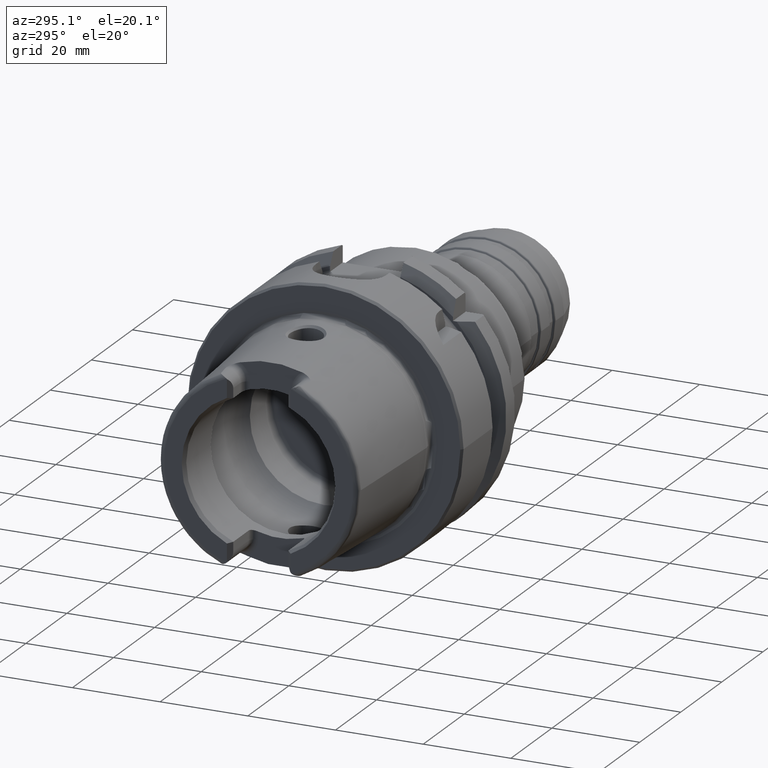
[diagram: clean part render]
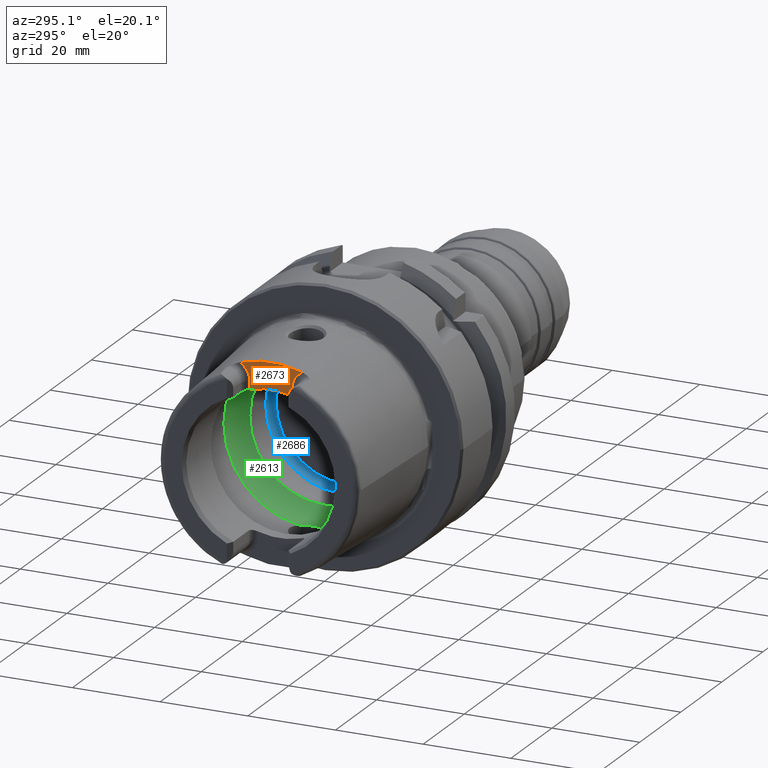
[diagram: same view with three faces highlighted in distinct colors, each labeled with its STEP entity id]
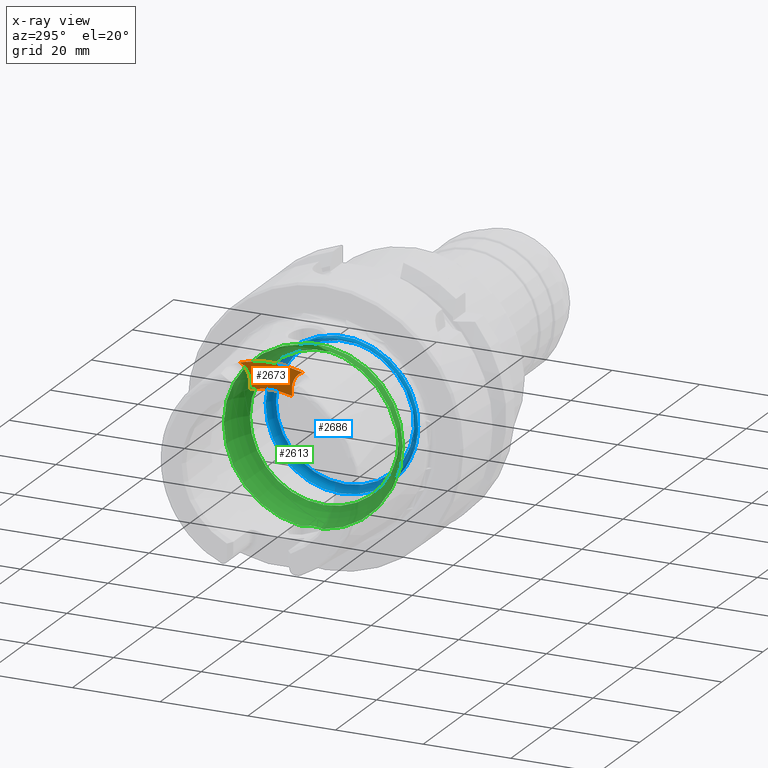
[diagram: x-ray of the same camera — body ghosted, the three highlighted faces saturated]
A machine part, auxiliary view with three faces highlighted in distinct colors.
The next image is the same camera in x-ray (body ghosted, the three faces saturated) — at least one of them is partly hidden behind the body in this view.
Their STEP definitions:

[orange] entity #2673 — the highlighted planar face has unit normal (-1, 0, 0).
#178=PLANE('',#3025);
#319=FACE_OUTER_BOUND('',#464,.T.);
#464=EDGE_LOOP('',(#2382,#2383,#2384,#2385,#2386,#2387));
#591=LINE('',#5457,#708);
#592=LINE('',#5486,#709);
#708=VECTOR('',#3762,10.);
#709=VECTOR('',#3775,10.);
#849=CIRCLE('',#2900,23.0180260521042);
#899=CIRCLE('',#3001,4.38);
#901=CIRCLE('',#3004,4.38);
#911=CIRCLE('',#3026,17.);
#1109=VERTEX_POINT('',#4634);
#1110=VERTEX_POINT('',#4649);
#1210=VERTEX_POINT('',#5454);
#1211=VERTEX_POINT('',#5456);
#1212=VERTEX_POINT('',#5471);
#1213=VERTEX_POINT('',#5475);
#1449=EDGE_CURVE('',#1109,#1110,#849,.T.);
#1603=EDGE_CURVE('',#1210,#1211,#591,.T.);
#1605=EDGE_CURVE('',#1110,#1210,#899,.T.);
#1607=EDGE_CURVE('',#1212,#1109,#901,.T.);
#1609=EDGE_CURVE('',#1213,#1212,#592,.T.);
#1625=EDGE_CURVE('',#1211,#1213,#911,.T.);
#2382=ORIENTED_EDGE('',*,*,#1605,.F.);
#2383=ORIENTED_EDGE('',*,*,#1449,.F.);
#2384=ORIENTED_EDGE('',*,*,#1607,.F.);
#2385=ORIENTED_EDGE('',*,*,#1609,.F.);
#2386=ORIENTED_EDGE('',*,*,#1625,.F.);
#2387=ORIENTED_EDGE('',*,*,#1603,.F.);
#2673=ADVANCED_FACE('',(#319),#178,.T.);
#2900=AXIS2_PLACEMENT_3D('',#4650,#3508,#3509);
#3001=AXIS2_PLACEMENT_3D('',#5469,#3765,#3766);
#3004=AXIS2_PLACEMENT_3D('',#5473,#3771,#3772);
#3025=AXIS2_PLACEMENT_3D('',#5534,#3818,#3819);
#3026=AXIS2_PLACEMENT_3D('',#5535,#3820,#3821);
#3508=DIRECTION('center_axis',(1.,0.,0.));
#3509=DIRECTION('ref_axis',(0.,1.,0.));
#3762=DIRECTION('',(0.,-1.58830189502884E-16,-1.));
#3765=DIRECTION('center_axis',(-1.,0.,0.));
#3766=DIRECTION('ref_axis',(0.,0.601141749549969,0.799142413433302));
#3771=DIRECTION('center_axis',(-1.,0.,0.));
#3772=DIRECTION('ref_axis',(0.,-0.601141749549969,0.799142413433301));
#3775=DIRECTION('',(0.,-1.58830189502884E-16,1.));
#3818=DIRECTION('center_axis',(-1.,0.,0.));
#3819=DIRECTION('ref_axis',(0.,0.,1.));
#3820=DIRECTION('center_axis',(-1.,0.,0.));
#3821=DIRECTION('ref_axis',(0.,1.,0.));
#4634=CARTESIAN_POINT('',(-26.,7.14127219004964,21.8822246319466));
#4649=CARTESIAN_POINT('',(-26.,-7.14127219004964,21.8822246319466));
#4650=CARTESIAN_POINT('Origin',(-26.,0.,0.));
#5454=CARTESIAN_POINT('',(-26.,-4.77,17.99));
#5456=CARTESIAN_POINT('',(-26.,-4.77,16.3170800083839));
#5457=CARTESIAN_POINT('',(-26.,-4.77,14.75));
#5469=CARTESIAN_POINT('Origin',(-26.,-9.15,17.99));
#5471=CARTESIAN_POINT('',(-26.,4.77,17.99));
#5473=CARTESIAN_POINT('Origin',(-26.,9.15,17.99));
#5475=CARTESIAN_POINT('',(-26.,4.77,16.3170800083839));
#5486=CARTESIAN_POINT('',(-26.,4.77,18.245));
#5534=CARTESIAN_POINT('Origin',(-26.,-2.22044604925031E-15,18.5));
#5535=CARTESIAN_POINT('Origin',(-26.,0.,0.));

[blue] entity #2686 — the highlighted toroidal blend (fillet) surface has major radius 15.75 mm and minor (blend) radius 1.5 mm.
#129=TOROIDAL_SURFACE('',#3059,15.75,1.5);
#332=FACE_OUTER_BOUND('',#478,.T.);
#478=EDGE_LOOP('',(#2467,#2468,#2469,#2470,#2471,#2472,#2473));
#930=CIRCLE('',#3057,15.75);
#931=CIRCLE('',#3058,15.75);
#932=CIRCLE('',#3060,1.5);
#933=CIRCLE('',#3061,17.);
#934=CIRCLE('',#3062,17.);
#935=CIRCLE('',#3063,17.);
#1228=VERTEX_POINT('',#5578);
#1229=VERTEX_POINT('',#5579);
#1230=VERTEX_POINT('',#5583);
#1231=VERTEX_POINT('',#5585);
#1232=VERTEX_POINT('',#5587);
#1646=EDGE_CURVE('',#1228,#1229,#930,.T.);
#1647=EDGE_CURVE('',#1229,#1228,#931,.T.);
#1648=EDGE_CURVE('',#1229,#1230,#932,.T.);
#1649=EDGE_CURVE('',#1230,#1231,#933,.T.);
#1650=EDGE_CURVE('',#1231,#1232,#934,.T.);
#1651=EDGE_CURVE('',#1232,#1230,#935,.T.);
#2467=ORIENTED_EDGE('',*,*,#1646,.F.);
#2468=ORIENTED_EDGE('',*,*,#1647,.F.);
#2469=ORIENTED_EDGE('',*,*,#1648,.T.);
#2470=ORIENTED_EDGE('',*,*,#1649,.T.);
#2471=ORIENTED_EDGE('',*,*,#1650,.T.);
#2472=ORIENTED_EDGE('',*,*,#1651,.T.);
#2473=ORIENTED_EDGE('',*,*,#1648,.F.);
#2686=ADVANCED_FACE('',(#332),#129,.F.);
#3057=AXIS2_PLACEMENT_3D('',#5580,#3884,#3885);
#3058=AXIS2_PLACEMENT_3D('',#5581,#3886,#3887);
#3059=AXIS2_PLACEMENT_3D('',#5582,#3888,#3889);
#3060=AXIS2_PLACEMENT_3D('',#5584,#3890,#3891);
#3061=AXIS2_PLACEMENT_3D('',#5586,#3892,#3893);
#3062=AXIS2_PLACEMENT_3D('',#5588,#3894,#3895);
#3063=AXIS2_PLACEMENT_3D('',#5589,#3896,#3897);
#3884=DIRECTION('center_axis',(-1.,0.,0.));
#3885=DIRECTION('ref_axis',(0.,0.,1.));
#3886=DIRECTION('center_axis',(-1.,0.,0.));
#3887=DIRECTION('ref_axis',(0.,0.,1.));
#3888=DIRECTION('center_axis',(-1.,0.,0.));
#3889=DIRECTION('ref_axis',(0.,0.,1.));
#3890=DIRECTION('center_axis',(0.,1.,-1.22464679914735E-16));
#3891=DIRECTION('ref_axis',(0.,-1.22464679914735E-16,-1.));
#3892=DIRECTION('center_axis',(-1.,0.,0.));
#3893=DIRECTION('ref_axis',(0.,0.,1.));
#3894=DIRECTION('center_axis',(-1.,0.,0.));
#3895=DIRECTION('ref_axis',(0.,0.,1.));
#3896=DIRECTION('center_axis',(-1.,0.,0.));
#3897=DIRECTION('ref_axis',(0.,0.,1.));
#5578=CARTESIAN_POINT('',(10.,15.75,0.));
#5579=CARTESIAN_POINT('',(10.,-1.92881870865708E-15,-15.75));
#5580=CARTESIAN_POINT('Origin',(10.,0.,0.));
#5581=CARTESIAN_POINT('Origin',(10.,0.,0.));
#5582=CARTESIAN_POINT('Origin',(8.5,0.,0.));
#5583=CARTESIAN_POINT('',(7.67084380241115,-2.0818995585505E-15,-17.));
#5584=CARTESIAN_POINT('Origin',(8.5,-1.92881870865708E-15,-15.75));
#5585=CARTESIAN_POINT('',(7.67084380241115,-17.,2.0818995585505E-15));
#5586=CARTESIAN_POINT('Origin',(7.67084380241115,0.,0.));
#5587=CARTESIAN_POINT('',(7.67084380241115,17.,0.));
#5588=CARTESIAN_POINT('Origin',(7.67084380241115,0.,0.));
#5589=CARTESIAN_POINT('Origin',(7.67084380241115,0.,0.));

[green] entity #2613 — the highlighted toroidal blend (fillet) surface has major radius 12 mm and minor (blend) radius 8 mm.
#49=B_SPLINE_CURVE_WITH_KNOTS('',3,(#4694,#4695,#4696,#4697,#4698,#4699,
#4700,#4701,#4702,#4703,#4704,#4705),.UNSPECIFIED.,.F.,.F.,(4,2,2,2,2,4),
(-0.576707489926969,-0.455716402860838,-0.365368737325041,-0.32054974107213,
-0.288976283252766,-0.288398128098722),.UNSPECIFIED.);
#51=B_SPLINE_CURVE_WITH_KNOTS('',3,(#4738,#4739,#4740,#4741,#4742,#4743,
#4744,#4745,#4746,#4747),.UNSPECIFIED.,.F.,.F.,(4,2,2,2,4),(-0.288398128098722,
-0.257600392372142,-0.213718373510557,-0.137948403428905,0.),
 .UNSPECIFIED.);
#54=B_SPLINE_CURVE_WITH_KNOTS('',3,(#4863,#4864,#4865,#4866,#4867,#4868,
#4869,#4870,#4871,#4872,#4873,#4874),.UNSPECIFIED.,.F.,.F.,(4,2,2,2,2,4),
(-0.576707489926933,-0.455716402860807,-0.365368737325012,-0.320549741072106,
-0.288976283252744,-0.288398128098698),.UNSPECIFIED.);
#56=B_SPLINE_CURVE_WITH_KNOTS('',3,(#4907,#4908,#4909,#4910,#4911,#4912,
#4913,#4914,#4915,#4916),.UNSPECIFIED.,.F.,.F.,(4,2,2,2,4),(-0.288398128098698,
-0.257600392372128,-0.213718373510553,-0.137948403428902,0.),
 .UNSPECIFIED.);
#110=TOROIDAL_SURFACE('',#2911,12.,8.);
#259=FACE_OUTER_BOUND('',#403,.T.);
#403=EDGE_LOOP('',(#2056,#2057,#2058,#2059,#2060,#2061,#2062,#2063,#2064,
#2065,#2066,#2067));
#851=CIRCLE('',#2905,20.);
#855=CIRCLE('',#2909,20.);
#856=CIRCLE('',#2910,20.);
#857=CIRCLE('',#2912,17.);
#858=CIRCLE('',#2913,17.);
#859=CIRCLE('',#2914,17.);
#860=CIRCLE('',#2915,8.);
#1113=VERTEX_POINT('',#4691);
#1114=VERTEX_POINT('',#4693);
#1115=VERTEX_POINT('',#4706);
#1118=VERTEX_POINT('',#4861);
#1119=VERTEX_POINT('',#4862);
#1120=VERTEX_POINT('',#4875);
#1122=VERTEX_POINT('',#4921);
#1126=VERTEX_POINT('',#4933);
#1127=VERTEX_POINT('',#4934);
#1128=VERTEX_POINT('',#4936);
#1455=EDGE_CURVE('',#1114,#1113,#49,.T.);
#1457=EDGE_CURVE('',#1113,#1115,#51,.T.);
#1461=EDGE_CURVE('',#1118,#1119,#54,.T.);
#1463=EDGE_CURVE('',#1119,#1120,#56,.T.);
#1466=EDGE_CURVE('',#1122,#1118,#851,.T.);
#1471=EDGE_CURVE('',#1115,#1122,#855,.T.);
#1472=EDGE_CURVE('',#1120,#1114,#856,.T.);
#1473=EDGE_CURVE('',#1126,#1127,#857,.T.);
#1474=EDGE_CURVE('',#1128,#1126,#858,.T.);
#1475=EDGE_CURVE('',#1127,#1128,#859,.T.);
#1476=EDGE_CURVE('',#1127,#1113,#860,.T.);
#2056=ORIENTED_EDGE('',*,*,#1473,.F.);
#2057=ORIENTED_EDGE('',*,*,#1474,.F.);
#2058=ORIENTED_EDGE('',*,*,#1475,.F.);
#2059=ORIENTED_EDGE('',*,*,#1476,.T.);
#2060=ORIENTED_EDGE('',*,*,#1457,.T.);
#2061=ORIENTED_EDGE('',*,*,#1471,.T.);
#2062=ORIENTED_EDGE('',*,*,#1466,.T.);
#2063=ORIENTED_EDGE('',*,*,#1461,.T.);
#2064=ORIENTED_EDGE('',*,*,#1463,.T.);
#2065=ORIENTED_EDGE('',*,*,#1472,.T.);
#2066=ORIENTED_EDGE('',*,*,#1455,.T.);
#2067=ORIENTED_EDGE('',*,*,#1476,.F.);
#2613=ADVANCED_FACE('',(#259),#110,.F.);
#2905=AXIS2_PLACEMENT_3D('',#4922,#3523,#3524);
#2909=AXIS2_PLACEMENT_3D('',#4930,#3532,#3533);
#2910=AXIS2_PLACEMENT_3D('',#4931,#3534,#3535);
#2911=AXIS2_PLACEMENT_3D('',#4932,#3536,#3537);
#2912=AXIS2_PLACEMENT_3D('',#4935,#3538,#3539);
#2913=AXIS2_PLACEMENT_3D('',#4937,#3540,#3541);
#2914=AXIS2_PLACEMENT_3D('',#4938,#3542,#3543);
#2915=AXIS2_PLACEMENT_3D('',#4939,#3544,#3545);
#3523=DIRECTION('center_axis',(-1.,0.,0.));
#3524=DIRECTION('ref_axis',(0.,0.,1.));
#3532=DIRECTION('center_axis',(-1.,0.,0.));
#3533=DIRECTION('ref_axis',(0.,0.,1.));
#3534=DIRECTION('center_axis',(-1.,0.,0.));
#3535=DIRECTION('ref_axis',(0.,0.,1.));
#3536=DIRECTION('center_axis',(-1.,0.,0.));
#3537=DIRECTION('ref_axis',(0.,0.,1.));
#3538=DIRECTION('center_axis',(-1.,0.,0.));
#3539=DIRECTION('ref_axis',(0.,0.,1.));
#3540=DIRECTION('center_axis',(-1.,0.,0.));
#3541=DIRECTION('ref_axis',(0.,0.,1.));
#3542=DIRECTION('center_axis',(-1.,0.,0.));
#3543=DIRECTION('ref_axis',(0.,0.,1.));
#3544=DIRECTION('center_axis',(0.,1.,-1.22464679914735E-16));
#3545=DIRECTION('ref_axis',(0.,-1.22464679914735E-16,-1.));
#4691=CARTESIAN_POINT('',(-5.25,-3.6885832437187E-16,-19.9307944116589));
#4693=CARTESIAN_POINT('',(-6.3,2.60240273593461,-19.8299646999182));
#4694=CARTESIAN_POINT('Ctrl Pts',(-6.3,2.60240273593462,-19.8299646999182));
#4695=CARTESIAN_POINT('Ctrl Pts',(-6.02135700807983,2.31330986502881,-19.8679040553113));
#4696=CARTESIAN_POINT('Ctrl Pts',(-5.79033009489734,1.98064918550539,-19.890591169119));
#4697=CARTESIAN_POINT('Ctrl Pts',(-5.4867559347239,1.34543685595402,-19.9160762142355));
#4698=CARTESIAN_POINT('Ctrl Pts',(-5.39007954405641,1.05909527261747,-19.9223713998338));
#4699=CARTESIAN_POINT('Ctrl Pts',(-5.29825184053117,0.617966692523932,-19.9280498303184));
#4700=CARTESIAN_POINT('Ctrl Pts',(-5.27657003878054,0.469994704559193,-19.9292919985393));
#4701=CARTESIAN_POINT('Ctrl Pts',(-5.25476109400056,0.216252544174992,-19.9305312191434));
#4702=CARTESIAN_POINT('Ctrl Pts',(-5.25016676806113,0.111043433894874,-19.9307851133249));
#4703=CARTESIAN_POINT('Ctrl Pts',(-5.25000148602981,0.00385492015310341,
-19.9307943288045));
#4704=CARTESIAN_POINT('Ctrl Pts',(-5.25,0.00192745284672571,-19.9307944116589));
#4705=CARTESIAN_POINT('Ctrl Pts',(-5.25,-1.22655814364354E-15,-19.9307944116589));
#4706=CARTESIAN_POINT('',(-6.3,-2.60240273593461,-19.8299646999182));
#4738=CARTESIAN_POINT('Ctrl Pts',(-5.25,-1.21430643318376E-15,-19.9307944116589));
#4739=CARTESIAN_POINT('Ctrl Pts',(-5.25,-0.102673448439657,-19.9307944116589));
#4740=CARTESIAN_POINT('Ctrl Pts',(-5.25421684930313,-0.205305866402814,
-19.9305613545514));
#4741=CARTESIAN_POINT('Ctrl Pts',(-5.27464110625334,-0.453434827119473,
-19.9294026077432));
#4742=CARTESIAN_POINT('Ctrl Pts',(-5.29516467443997,-0.598409706843586,
-19.9282296486912));
#4743=CARTESIAN_POINT('Ctrl Pts',(-5.37406649070666,-0.989396372030705,
-19.9233785291009));
#4744=CARTESIAN_POINT('Ctrl Pts',(-5.44891810120348,-1.23128278857668,-19.9185486409462));
#4745=CARTESIAN_POINT('Ctrl Pts',(-5.72687568605109,-1.88691112132017,-19.8966847278005));
#4746=CARTESIAN_POINT('Ctrl Pts',(-5.98230637151864,-2.2727947221344,-19.8732210954731));
#4747=CARTESIAN_POINT('Ctrl Pts',(-6.3,-2.60240273593462,-19.8299646999182));
#4861=CARTESIAN_POINT('',(-6.3,-2.60240273593461,19.8299646999182));
#4862=CARTESIAN_POINT('',(-5.25,1.12300386496818E-15,19.9307944116589));
#4863=CARTESIAN_POINT('Ctrl Pts',(-6.3,-2.60240273593462,19.8299646999182));
#4864=CARTESIAN_POINT('Ctrl Pts',(-6.02135700807986,-2.31330986502884,19.8679040553113));
#4865=CARTESIAN_POINT('Ctrl Pts',(-5.79033009489738,-1.98064918550546,19.890591169119));
#4866=CARTESIAN_POINT('Ctrl Pts',(-5.48675593472392,-1.34543685595409,19.9160762142355));
#4867=CARTESIAN_POINT('Ctrl Pts',(-5.39007954405642,-1.05909527261754,19.9223713998338));
#4868=CARTESIAN_POINT('Ctrl Pts',(-5.29825184053117,-0.617966692523972,
19.9280498303184));
#4869=CARTESIAN_POINT('Ctrl Pts',(-5.27657003878054,-0.469994704559233,
19.9292919985393));
#4870=CARTESIAN_POINT('Ctrl Pts',(-5.25476109400056,-0.216252544174991,
19.9305312191434));
#4871=CARTESIAN_POINT('Ctrl Pts',(-5.25016676806113,-0.111043433894851,
19.9307851133249));
#4872=CARTESIAN_POINT('Ctrl Pts',(-5.2500014860298,-0.00385492015311072,
19.9307943288045));
#4873=CARTESIAN_POINT('Ctrl Pts',(-5.25,-0.00192745284672909,19.9307944116589));
#4874=CARTESIAN_POINT('Ctrl Pts',(-5.25,1.81500434093853E-15,19.9307944116589));
#4875=CARTESIAN_POINT('',(-6.3,2.60240273593461,19.8299646999182));
#4907=CARTESIAN_POINT('Ctrl Pts',(-5.25,1.85615411929518E-15,19.9307944116589));
#4908=CARTESIAN_POINT('Ctrl Pts',(-5.25,0.1026734484396,19.9307944116589));
#4909=CARTESIAN_POINT('Ctrl Pts',(-5.25421684930312,0.20530586640278,19.9305613545513));
#4910=CARTESIAN_POINT('Ctrl Pts',(-5.27464110625333,0.453434827119507,19.9294026077432));
#4911=CARTESIAN_POINT('Ctrl Pts',(-5.29516467443997,0.598409706843592,19.9282296486912));
#4912=CARTESIAN_POINT('Ctrl Pts',(-5.37406649070666,0.989396372030691,19.9233785291009));
#4913=CARTESIAN_POINT('Ctrl Pts',(-5.44891810120347,1.23128278857668,19.9185486409462));
#4914=CARTESIAN_POINT('Ctrl Pts',(-5.72687568605109,1.88691112132019,19.8966847278005));
#4915=CARTESIAN_POINT('Ctrl Pts',(-5.98230637151865,2.27279472213441,19.8732210954731));
#4916=CARTESIAN_POINT('Ctrl Pts',(-6.3,2.60240273593462,19.8299646999182));
#4921=CARTESIAN_POINT('',(-6.3,-20.,2.44929359829471E-15));
#4922=CARTESIAN_POINT('Origin',(-6.3,0.,0.));
#4930=CARTESIAN_POINT('Origin',(-6.3,0.,0.));
#4931=CARTESIAN_POINT('Origin',(-6.3,0.,0.));
#4932=CARTESIAN_POINT('Origin',(-6.3,0.,0.));
#4933=CARTESIAN_POINT('',(-0.055002001601602,17.,0.));
#4934=CARTESIAN_POINT('',(-0.0550020016016017,-2.0818995585505E-15,-17.));
#4935=CARTESIAN_POINT('Origin',(-0.0550020016016017,0.,0.));
#4936=CARTESIAN_POINT('',(-0.0550020016016017,-17.,2.0818995585505E-15));
#4937=CARTESIAN_POINT('Origin',(-0.0550020016016017,0.,0.));
#4938=CARTESIAN_POINT('Origin',(-0.0550020016016017,0.,0.));
#4939=CARTESIAN_POINT('Origin',(-6.3,-1.46957615897682E-15,-12.));